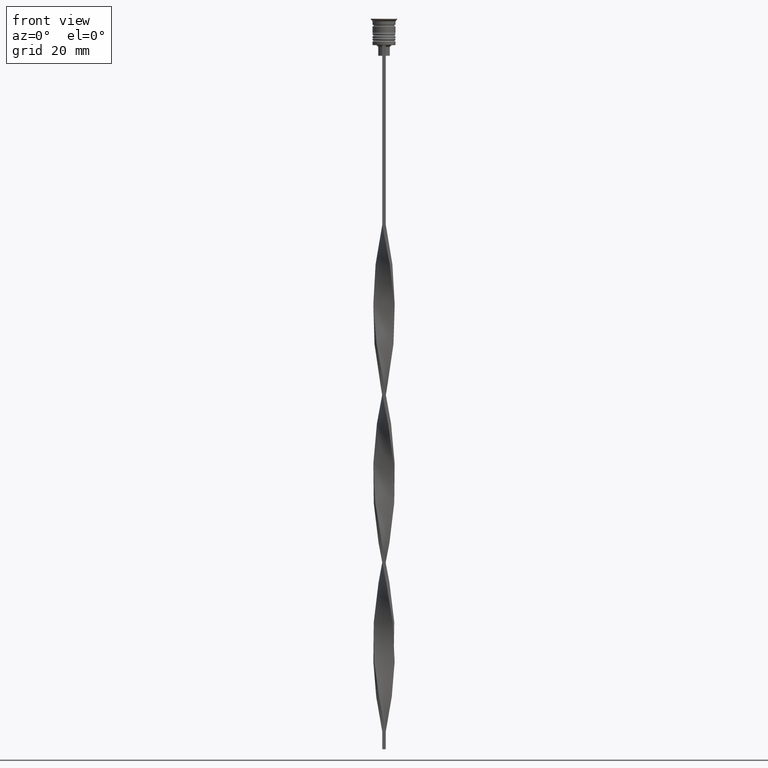
[diagram: clean part render]
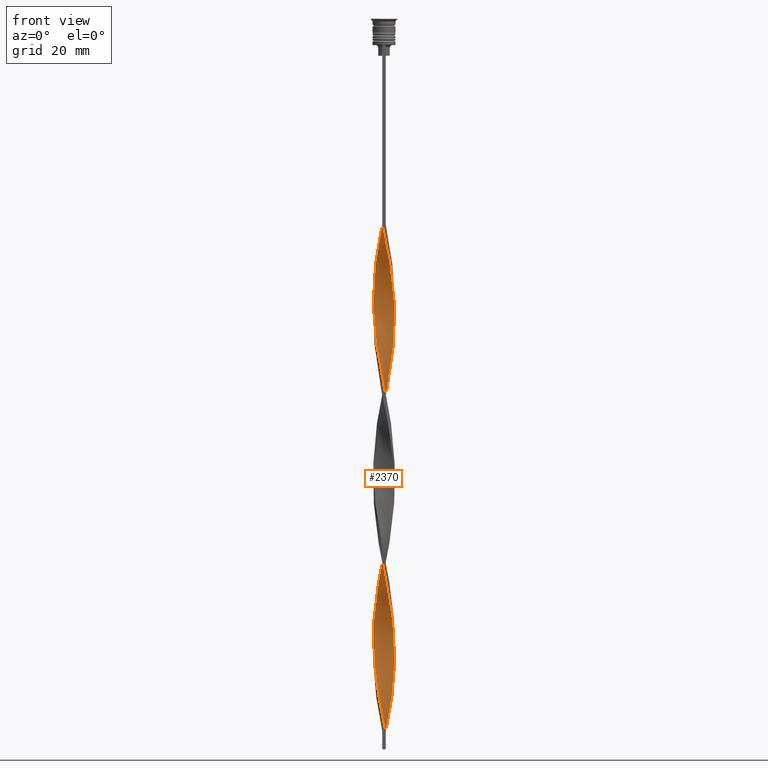
[diagram: same view with one face highlighted and labeled with its STEP entity id]
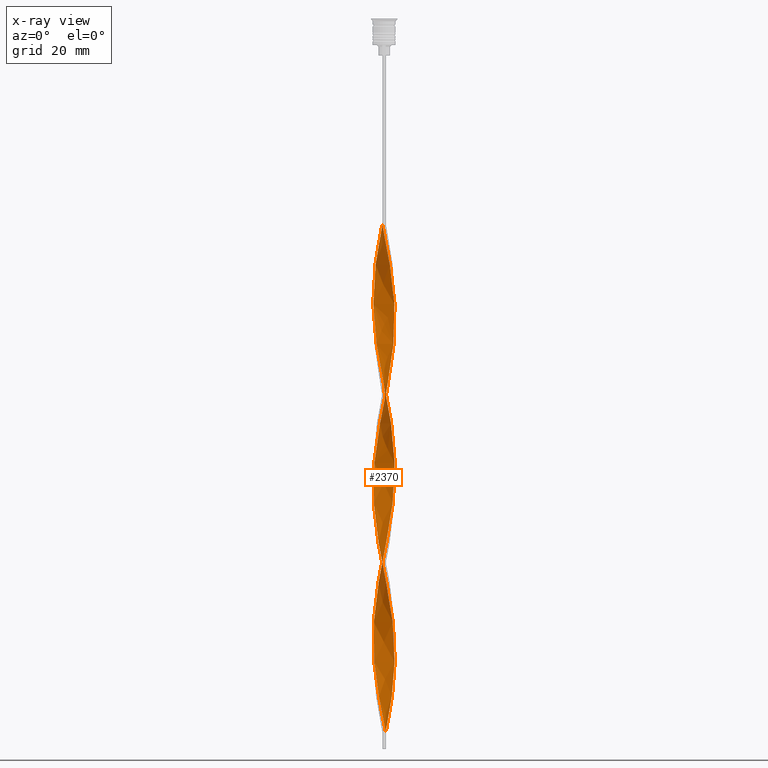
[diagram: x-ray of the same camera — body ghosted, the highlighted face saturated]
A machine part, front view. The second image highlights one B-rep face of the part: STEP entity #2370.
The next image is the same camera in x-ray: the body ghosted, the highlighted face saturated — about 0% of this face is hidden behind the body in this view.
In plain terms, the highlighted face is a freeform B-spline surface patch.
Its self-contained STEP definition (entity closure, byte-faithful):
#2 = CARTESIAN_POINT ( 'NONE',  ( 0.3415330684894307689, -3.035256292798965916, -158.7352941176470438 ) ) ;
#10 = CARTESIAN_POINT ( 'NONE',  ( -3.033336708616754862, -0.2210620097576112830, -81.08823529411763786 ) ) ;
#17 = CARTESIAN_POINT ( 'NONE',  ( -0.05976200360776012799, -3.040794057959990582, -199.6764705882352757 ) ) ;
#29 = CARTESIAN_POINT ( 'NONE',  ( 0.7779909387260891540, 2.953668176878986973, -201.0882352941176237 ) ) ;
#44 = CARTESIAN_POINT ( 'NONE',  ( -2.564815624776293657, 1.658658015008195097, -71.20588235294118817 ) ) ;
#55 = CARTESIAN_POINT ( 'NONE',  ( -1.888233802353294744, -2.400832919529793941, -189.7941176470588118 ) ) ;
#58 = CARTESIAN_POINT ( 'NONE',  ( 2.990795728622512417, 0.6201342673170633368, -184.1470588235293917 ) ) ;
#62 = CARTESIAN_POINT ( 'NONE',  ( -1.307479267857234895, 2.760420903407855509, -62.73529411764705799 ) ) ;
#77 = CARTESIAN_POINT ( 'NONE',  ( -2.628006467404950364, -1.556601299988307208, -184.1470588235293917 ) ) ;
#79 = CARTESIAN_POINT ( 'NONE',  ( -0.5000000000000001110, -3.000000000000000000, -58.50000000000000000 ) ) ;
#95 = CARTESIAN_POINT ( 'NONE',  ( -0.05976200360776012799, -3.040794057959990582, -103.6764705882352899 ) ) ;
#105 = CARTESIAN_POINT ( 'NONE',  ( -1.307479267857234673, 2.760420903407855509, -62.73529411764705799 ) ) ;
#115 = CARTESIAN_POINT ( 'NONE',  ( 2.990795728622511973, -0.6201342673170634479, -124.8529411764705799 ) ) ;
#128 = CARTESIAN_POINT ( 'NONE',  ( -2.390591389550001278, 1.880178929838698831, -69.79411764705881183 ) ) ;
#133 = CARTESIAN_POINT ( 'NONE',  ( -2.004405056496874504, 2.287435325750164505, -162.9705882352940876 ) ) ;
#137 = CARTESIAN_POINT ( 'NONE',  ( -0.2220090612739108182, -3.046331823121015248, -59.91176470588236214 ) ) ;
#155 = CARTESIAN_POINT ( 'NONE',  ( 0.8934446992291303902, 2.920818749814322324, -147.4411764705882320 ) ) ;
#157 = CARTESIAN_POINT ( 'NONE',  ( 2.908359051953456564, 0.8896334216520833671, -89.55882352941175384 ) ) ;
#182 = CARTESIAN_POINT ( 'NONE',  ( -1.888233802353294744, -2.400832919529793941, -93.79411764705882604 ) ) ;
#189 = CARTESIAN_POINT ( 'NONE',  ( 1.888233802353294744, -2.400832919529793941, -71.20588235294118817 ) ) ;
#198 = CARTESIAN_POINT ( 'NONE',  ( 0.8934446992291303902, 2.920818749814322324, -147.4411764705882320 ) ) ;
#209 = CARTESIAN_POINT ( 'NONE',  ( 2.004405056496874504, 2.287435325750164505, -98.02941176470588402 ) ) ;
#215 = CARTESIAN_POINT ( 'NONE',  ( 2.695369000030346740, -1.408895295497649913, -120.6176470588235219 ) ) ;
#218 =( BOUNDED_SURFACE ( )  B_SPLINE_SURFACE ( 1, 2, ( 
 ( #2979, #2088, #442, #1901, #2467, #1375, #3284, #3562, #2434, #189, #1358, #1620, #1342, #2508, #2741, #3619, #1078, #2163, #3543, #1022, #2485, #1101, #3597, #455, #2758, #3272, #528, #798, #209, #2211, #3324, #3579, #1056, #1639, #1941, #3047, #1678, #2193, #510, #737, #3034, #3303, #1038, #3065, #2233, #1882, #778, #3344, #818, #1661, #2996, #3012, #1324, #1961, #2793, #1602, #1304, #2723, #2451, #2177, #468, #1921, #757, #491, #226, #2775, #243, #2271, #1193, #265, #1156, #3417, #2813, #2867, #2054, #1417, #891, #3155, #3365, #626, #299, #3382, #611, #2578, #282, #3636, #2289, #1435, #2250, #1397, #2543, #570, #3399, #2560, #3138, #1977, #1758, #2526, #550, #912, #1135, #29, #874 ),
 ( #2036, #330, #859, #62, #1471, #2001, #1736, #2596, #3432, #44, #1119, #836, #1718, #2829, #2021, #1455, #10, #3082, #3120, #1699, #590, #2848, #2319, #1773, #3099, #315, #1177, #2306, #2667, #2084, #1283, #401, #95, #1228, #3482, #2353, #2939, #1262, #979, #2124, #926, #3232, #344, #3171, #3521, #3466, #381, #115, #2650, #2068, #1543, #419, #641, #3449, #1243, #716, #961, #1788, #1526, #2369, #2690, #3212, #3250, #155, #3503, #660, #2107, #2410, #2900, #943, #1808, #682, #3192, #1825, #133, #2393, #701, #1000, #2921, #1844, #2956, #361, #1508, #1565, #2142, #2630, #2884, #1486, #2610, #77, #1212, #2337, #2975, #1914, #1935, #3028, #1016, #3301, #439, #1098, #1355, #2174, #484 ) ),
 .UNSPECIFIED., .F., .F., .F. ) 
 B_SPLINE_SURFACE_WITH_KNOTS ( ( 2, 2 ),
 ( 3, 2, 2, 2, 2, 2, 2, 2, 2, 2, 2, 2, 2, 2, 2, 2, 2, 2, 2, 2, 2, 2, 2, 2, 2, 2, 2, 2, 2, 2, 2, 2, 2, 2, 2, 2, 2, 2, 2, 2, 2, 2, 2, 2, 2, 2, 2, 2, 2, 2, 2, 3 ),
 ( 0.000000000000000000, 1.000000000000000000 ),
 ( 0.000000000000000000, 0.01470588235294117627, 0.02941176470588235253, 0.04411764705882353227, 0.05882352941176470507, 0.07352941176470588480, 0.08823529411764706454, 0.1029411764705882304, 0.1176470588235294101, 0.1323529411764705899, 0.1470588235294117696, 0.1617647058823529493, 0.1764705882352941291, 0.1911764705882352811, 0.2058823529411764608, 0.2205882352941176405, 0.2352941176470588203, 0.2500000000000000000, 0.2647058823529411797, 0.2794117647058823595, 0.2941176470588235392, 0.3088235294117647189, 0.3235294117647058987, 0.3382352941176470784, 0.3529411764705882582, 0.3676470588235294379, 0.3823529411764705621, 0.3970588235294117418, 0.4117647058823529216, 0.4264705882352941013, 0.4411764705882352811, 0.4558823529411764608, 0.4705882352941176405, 0.4852941176470588203, 0.5000000000000000000, 0.5147058823529411242, 0.5294117647058823595, 0.5441176470588234837, 0.5588235294117647189, 0.5735294117647058432, 0.5882352941176470784, 0.6029411764705882026, 0.6176470588235294379, 0.6323529411764705621, 0.6470588235294117974, 0.6617647058823529216, 0.6764705882352941568, 0.6911764705882352811, 0.7058823529411765163, 0.7205882352941176405, 0.7352941176470588758, 0.7500000000000000000 ),
 .UNSPECIFIED. ) 
 GEOMETRIC_REPRESENTATION_ITEM ( )  RATIONAL_B_SPLINE_SURFACE ( (
 ( 1.000000000000000000, 0.9957341762950344677, 1.000000000000000000, 0.9957341762950344677, 1.000000000000000000, 0.9957341762950344677, 1.000000000000000000, 0.9957341762950344677, 1.000000000000000000, 0.9957341762950344677, 1.000000000000000000, 0.9957341762950344677, 1.000000000000000000, 0.9957341762950344677, 1.000000000000000000, 0.9957341762950344677, 1.000000000000000000, 0.9957341762950344677, 1.000000000000000000, 0.9957341762950344677, 1.000000000000000000, 0.9957341762950344677, 1.000000000000000000, 0.9957341762950344677, 1.000000000000000000, 0.9957341762950344677, 1.000000000000000000, 0.9957341762950344677, 1.000000000000000000, 0.9957341762950344677, 1.000000000000000000, 0.9957341762950344677, 1.000000000000000000, 0.9957341762950344677, 1.000000000000000000, 0.9957341762950344677, 1.000000000000000000, 0.9957341762950344677, 1.000000000000000000, 0.9957341762950344677, 1.000000000000000000, 0.9957341762950344677, 1.000000000000000000, 0.9957341762950344677, 1.000000000000000000, 0.9957341762950344677, 1.000000000000000000, 0.9957341762950344677, 1.000000000000000000, 0.9957341762950344677, 1.000000000000000000, 0.9957341762950344677, 1.000000000000000000, 0.9957341762950344677, 1.000000000000000000, 0.9957341762950344677, 1.000000000000000000, 0.9957341762950344677, 1.000000000000000000, 0.9957341762950344677, 1.000000000000000000, 0.9957341762950344677, 1.000000000000000000, 0.9957341762950344677, 1.000000000000000000, 0.9957341762950344677, 1.000000000000000000, 0.9957341762950344677, 1.000000000000000000, 0.9957341762950344677, 1.000000000000000000, 0.9957341762950344677, 1.000000000000000000, 0.9957341762950344677, 1.000000000000000000, 0.9957341762950344677, 1.000000000000000000, 0.9957341762950344677, 1.000000000000000000, 0.9957341762950344677, 1.000000000000000000, 0.9957341762950344677, 1.000000000000000000, 0.9957341762950344677, 1.000000000000000000, 0.9957341762950344677, 1.000000000000000000, 0.9957341762950344677, 1.000000000000000000, 0.9957341762950344677, 1.000000000000000000, 0.9957341762950344677, 1.000000000000000000, 0.9957341762950344677, 1.000000000000000000, 0.9957341762950344677, 1.000000000000000000, 0.9957341762950344677, 1.000000000000000000, 0.9957341762950344677, 1.000000000000000000, 0.9957341762950344677, 1.000000000000000000),
 ( 1.000000000000000000, 0.9957341762950344677, 1.000000000000000000, 0.9957341762950344677, 1.000000000000000000, 0.9957341762950344677, 1.000000000000000000, 0.9957341762950344677, 1.000000000000000000, 0.9957341762950344677, 1.000000000000000000, 0.9957341762950344677, 1.000000000000000000, 0.9957341762950344677, 1.000000000000000000, 0.9957341762950344677, 1.000000000000000000, 0.9957341762950344677, 1.000000000000000000, 0.9957341762950344677, 1.000000000000000000, 0.9957341762950344677, 1.000000000000000000, 0.9957341762950344677, 1.000000000000000000, 0.9957341762950344677, 1.000000000000000000, 0.9957341762950344677, 1.000000000000000000, 0.9957341762950344677, 1.000000000000000000, 0.9957341762950344677, 1.000000000000000000, 0.9957341762950344677, 1.000000000000000000, 0.9957341762950344677, 1.000000000000000000, 0.9957341762950344677, 1.000000000000000000, 0.9957341762950344677, 1.000000000000000000, 0.9957341762950344677, 1.000000000000000000, 0.9957341762950344677, 1.000000000000000000, 0.9957341762950344677, 1.000000000000000000, 0.9957341762950344677, 1.000000000000000000, 0.9957341762950344677, 1.000000000000000000, 0.9957341762950344677, 1.000000000000000000, 0.9957341762950344677, 1.000000000000000000, 0.9957341762950344677, 1.000000000000000000, 0.9957341762950344677, 1.000000000000000000, 0.9957341762950344677, 1.000000000000000000, 0.9957341762950344677, 1.000000000000000000, 0.9957341762950344677, 1.000000000000000000, 0.9957341762950344677, 1.000000000000000000, 0.9957341762950344677, 1.000000000000000000, 0.9957341762950344677, 1.000000000000000000, 0.9957341762950344677, 1.000000000000000000, 0.9957341762950344677, 1.000000000000000000, 0.9957341762950344677, 1.000000000000000000, 0.9957341762950344677, 1.000000000000000000, 0.9957341762950344677, 1.000000000000000000, 0.9957341762950344677, 1.000000000000000000, 0.9957341762950344677, 1.000000000000000000, 0.9957341762950344677, 1.000000000000000000, 0.9957341762950344677, 1.000000000000000000, 0.9957341762950344677, 1.000000000000000000, 0.9957341762950344677, 1.000000000000000000, 0.9957341762950344677, 1.000000000000000000, 0.9957341762950344677, 1.000000000000000000, 0.9957341762950344677, 1.000000000000000000, 0.9957341762950344677, 1.000000000000000000, 0.9957341762950344677, 1.000000000000000000) ) ) 
 REPRESENTATION_ITEM ( '' )  SURFACE ( )  );
#221 = CARTESIAN_POINT ( 'NONE',  ( 2.092734363651089780, -2.206912522777889407, -168.6176470588235077 ) ) ;
#226 = CARTESIAN_POINT ( 'NONE',  ( -1.549961113263637058, -2.616795855119490533, -148.8529411764705799 ) ) ;
#235 = CARTESIAN_POINT ( 'NONE',  ( -1.792442958670039221, 2.473170806831127333, -161.5588235294117680 ) ) ;
#238 = CARTESIAN_POINT ( 'NONE',  ( -1.792442958670038777, -2.473170806831127333, -147.4411764705882320 ) ) ;
#243 = CARTESIAN_POINT ( 'NONE',  ( -1.042735103291661192, -2.857044540143419908, -151.6764705882353041 ) ) ;
#254 = CARTESIAN_POINT ( 'NONE',  ( 2.462620696176917257, 1.784796713007146707, -137.5588235294117680 ) ) ;
#259 = CARTESIAN_POINT ( 'NONE',  ( 0.7779909387260891540, 2.953668176878986529, -105.0882352941176521 ) ) ;
#265 = CARTESIAN_POINT ( 'NONE',  ( -0.2220090612739108182, -3.046331823121014803, -155.9117647058824048 ) ) ;
#274 = CARTESIAN_POINT ( 'NONE',  ( -2.462620696176917701, -1.784796713007145819, -185.5588235294117396 ) ) ;
#277 = CARTESIAN_POINT ( 'NONE',  ( -2.462620696176918589, 1.784796713007145375, -123.4411764705882177 ) ) ;
#282 = CARTESIAN_POINT ( 'NONE',  ( 2.941068349153452388, -0.7746721665374233234, -177.0882352941176237 ) ) ;
#299 = CARTESIAN_POINT ( 'NONE',  ( 2.462620696176917701, -1.784796713007146041, -171.4411764705882035 ) ) ;
#315 = CARTESIAN_POINT ( 'NONE',  ( -1.888233802353294744, -2.400832919529793941, -93.79411764705881183 ) ) ;
#330 = CARTESIAN_POINT ( 'NONE',  ( -0.7779909387260893761, 2.953668176878985641, -59.91176470588236214 ) ) ;
#344 = CARTESIAN_POINT ( 'NONE',  ( 2.390591389550001278, -1.880178929838698831, -117.7941176470588118 ) ) ;
#361 = CARTESIAN_POINT ( 'NONE',  ( -2.990795728622511973, 0.6201342673170636699, -172.8529411764705799 ) ) ;
#376 = ORIENTED_EDGE ( 'NONE', *, *, #819, .T. ) ;
#381 = CARTESIAN_POINT ( 'NONE',  ( 2.908359051953456564, -0.8896334216520829230, -123.4411764705882177 ) ) ;
#383 = CARTESIAN_POINT ( 'NONE',  ( 3.053821120486486240, 0.06001802994261470209, -85.32352941176469585 ) ) ;
#401 = CARTESIAN_POINT ( 'NONE',  ( -0.3415330684894314350, -3.035256292798966360, -102.2647058823529420 ) ) ;
#403 = CARTESIAN_POINT ( 'NONE',  ( 2.092734363651089780, -2.206912522777889407, -72.61764705882352189 ) ) ;
#410 = VERTEX_POINT ( 'NONE', #1138 ) ;
#419 = CARTESIAN_POINT ( 'NONE',  ( 3.012852296747023484, 0.5021420494578368032, -130.5000000000000000 ) ) ;
#434 = CARTESIAN_POINT ( 'NONE',  ( -2.216367154323710231, 2.101699844669202566, -68.38235294117646390 ) ) ;
#439 = CARTESIAN_POINT ( 'NONE',  ( -0.6174888838592809126, -2.978037521306644120, -196.8529411764705515 ) ) ;
#442 = CARTESIAN_POINT ( 'NONE',  ( 0.05976200360776001697, -3.040794057959990582, -61.32352941176470296 ) ) ;
#449 = CARTESIAN_POINT ( 'NONE',  ( -2.297234924948885926, -2.012992126025985762, -90.97058823529411598 ) ) ;
#455 = CARTESIAN_POINT ( 'NONE',  ( 2.825922375284401156, 1.159132575987104286, -90.97058823529413019 ) ) ;
#462 = CARTESIAN_POINT ( 'NONE',  ( 1.414931142305390521, 2.706916227440719691, -144.6176470588235361 ) ) ;
#468 = CARTESIAN_POINT ( 'NONE',  ( -2.390591389550000834, -1.880178929838698831, -143.2058823529411882 ) ) ;
#476 = CARTESIAN_POINT ( 'NONE',  ( -3.053821120486486240, 0.06001802994261448004, -175.6764705882353041 ) ) ;
#482 = CARTESIAN_POINT ( 'NONE',  ( 1.414931142305390077, -2.706916227440719691, -164.3823529411764923 ) ) ;
#484 = CARTESIAN_POINT ( 'NONE',  ( 0.4999999999999997780, -3.000000000000000000, -202.4999999999999716 ) ) ;
#491 = CARTESIAN_POINT ( 'NONE',  ( -1.792442958670038555, -2.473170806831126889, -147.4411764705882320 ) ) ;
#498 = CARTESIAN_POINT ( 'NONE',  ( -2.390591389550001278, 1.880178929838698831, -165.7941176470588118 ) ) ;
#503 = CARTESIAN_POINT ( 'NONE',  ( 0.2220090612739105962, 3.046331823121015248, -107.9117647058823621 ) ) ;
#510 = CARTESIAN_POINT ( 'NONE',  ( -0.6174888838592813567, 2.978037521306644120, -112.1470588235294059 ) ) ;
#520 = CARTESIAN_POINT ( 'NONE',  ( 1.888233802353293633, 2.400832919529794385, -141.7941176470587834 ) ) ;
#523 = CARTESIAN_POINT ( 'NONE',  ( -1.888233802353294744, 2.400832919529793497, -119.2058823529411598 ) ) ;
#528 = CARTESIAN_POINT ( 'NONE',  ( 2.390591389550001722, 1.880178929838698387, -95.20588235294117396 ) ) ;
#539 = CARTESIAN_POINT ( 'NONE',  ( 1.549961113263637280, -2.616795855119490533, -112.1470588235294059 ) ) ;
#543 = CARTESIAN_POINT ( 'NONE',  ( -3.033336708616754418, 0.2210620097576128096, -131.9117647058823479 ) ) ;
#550 = CARTESIAN_POINT ( 'NONE',  ( 1.549961113263636836, 2.616795855119490533, -196.8529411764705515 ) ) ;
#566 = CARTESIAN_POINT ( 'NONE',  ( 0.5000000000000004441, 3.000000000000000000, -202.4999999999999716 ) ) ;
#570 = CARTESIAN_POINT ( 'NONE',  ( 2.825922375284401156, 1.159132575987104286, -186.9705882352941444 ) ) ;
#585 = CARTESIAN_POINT ( 'NONE',  ( 2.004405056496874504, 2.287435325750164505, -194.0294117647058556 ) ) ;
#590 = CARTESIAN_POINT ( 'NONE',  ( -2.748645434482415606, -1.301901791802658526, -86.73529411764704378 ) ) ;
#611 = CARTESIAN_POINT ( 'NONE',  ( 2.748645434482416050, -1.301901791802658082, -174.2647058823529278 ) ) ;
#619 = CARTESIAN_POINT ( 'NONE',  ( -0.3415330684894313795, -3.035256292798966360, -198.2647058823529562 ) ) ;
#626 = CARTESIAN_POINT ( 'NONE',  ( 2.297234924948886370, -2.012992126025985318, -170.0294117647058556 ) ) ;
#627 = EDGE_CURVE ( 'NONE', #892, #410, #1190, .T. ) ;
#637 = CARTESIAN_POINT ( 'NONE',  ( 1.549961113263636836, 2.616795855119490533, -196.8529411764705515 ) ) ;
#641 = CARTESIAN_POINT ( 'NONE',  ( 2.941068349153452832, 0.7746721665374219912, -131.9117647058823479 ) ) ;
#654 = CARTESIAN_POINT ( 'NONE',  ( -3.033336708616754862, -0.2210620097576112830, -81.08823529411763786 ) ) ;
#660 = CARTESIAN_POINT ( 'NONE',  ( 0.3415330684894318236, 3.035256292798965916, -150.2647058823529278 ) ) ;
#670 = ORIENTED_EDGE ( 'NONE', *, *, #2621, .F. ) ;
#682 = CARTESIAN_POINT ( 'NONE',  ( -1.307479267857234895, 2.760420903407855509, -158.7352941176470154 ) ) ;
#694 = CARTESIAN_POINT ( 'NONE',  ( -1.792442958670039221, 2.473170806831127333, -65.55882352941178226 ) ) ;
#701 = CARTESIAN_POINT ( 'NONE',  ( -2.390591389550001278, 1.880178929838698831, -165.7941176470588118 ) ) ;
#703 = CARTESIAN_POINT ( 'NONE',  ( 0.05976200360776001697, -3.040794057959990582, -61.32352941176470296 ) ) ;
#711 = DIRECTION ( 'NONE',  ( 0.000000000000000000, 1.000000000000000000, 0.000000000000000000 ) ) ;
#716 = CARTESIAN_POINT ( 'NONE',  ( 2.628006467404950808, 1.556601299988306542, -136.1470588235294201 ) ) ;
#737 = CARTESIAN_POINT ( 'NONE',  ( -0.8934446992291307232, 2.920818749814322324, -113.5588235294117538 ) ) ;
#745 = CARTESIAN_POINT ( 'NONE',  ( 2.990795728622512417, -0.6201342673170634479, -124.8529411764705799 ) ) ;
#757 = CARTESIAN_POINT ( 'NONE',  ( -2.004405056496875837, -2.287435325750163617, -146.0294117647058556 ) ) ;
#765 = CARTESIAN_POINT ( 'NONE',  ( -2.004405056496874504, 2.287435325750164505, -162.9705882352940876 ) ) ;
#770 = CARTESIAN_POINT ( 'NONE',  ( 2.216367154323710231, 2.101699844669202566, -96.61764705882355031 ) ) ;
#774 = VERTEX_POINT ( 'NONE', #3131 ) ;
#778 = CARTESIAN_POINT ( 'NONE',  ( -2.462620696176918589, 1.784796713007145375, -123.4411764705882177 ) ) ;
#788 = CARTESIAN_POINT ( 'NONE',  ( 0.4999999999999997780, -3.000000000000000000, -106.4999999999999858 ) ) ;
#793 = CARTESIAN_POINT ( 'NONE',  ( -2.092734363651089780, 2.206912522777889851, -120.6176470588235219 ) ) ;
#798 = CARTESIAN_POINT ( 'NONE',  ( 2.216367154323710675, 2.101699844669202566, -96.61764705882353610 ) ) ;
#807 = CARTESIAN_POINT ( 'NONE',  ( 3.012852296747023484, 0.5021420494578368032, -130.5000000000000000 ) ) ;
#812 = CARTESIAN_POINT ( 'NONE',  ( 2.869284401559882625, -1.047202283617009400, -175.6764705882353041 ) ) ;
#818 = CARTESIAN_POINT ( 'NONE',  ( -2.748645434482415606, 1.301901791802659192, -126.2647058823529420 ) ) ;
#819 = EDGE_CURVE ( 'NONE', #892, #774, #3207, .T. ) ;
#827 = CARTESIAN_POINT ( 'NONE',  ( -1.307479267857234673, 2.760420903407855509, -158.7352941176470438 ) ) ;
#829 = CARTESIAN_POINT ( 'NONE',  ( -0.2220090612739108182, -3.046331823121015248, -155.9117647058823763 ) ) ;
#836 = CARTESIAN_POINT ( 'NONE',  ( -2.825922375284401156, 1.159132575987104063, -74.02941176470586981 ) ) ;
#852 = CARTESIAN_POINT ( 'NONE',  ( 1.549961113263636836, 2.616795855119490533, -100.8529411764705941 ) ) ;
#859 = CARTESIAN_POINT ( 'NONE',  ( -1.042735103291662080, 2.857044540143419908, -61.32352941176470296 ) ) ;
#870 = CARTESIAN_POINT ( 'NONE',  ( 2.564815624776293657, 1.658658015008195097, -189.7941176470588118 ) ) ;
#874 = CARTESIAN_POINT ( 'NONE',  ( 0.5000000000000004441, 3.000000000000000000, -202.4999999999999716 ) ) ;
#891 = CARTESIAN_POINT ( 'NONE',  ( 1.651582472329342188, -2.553874573485256150, -165.7941176470588118 ) ) ;
#892 = VERTEX_POINT ( 'NONE', #1819 ) ;
#902 = EDGE_CURVE ( 'NONE', #774, #2354, #3180, .T. ) ;
#912 = CARTESIAN_POINT ( 'NONE',  ( 1.307479267857235561, 2.760420903407855064, -198.2647058823529562 ) ) ;
#926 = CARTESIAN_POINT ( 'NONE',  ( 2.004405056496874948, -2.287435325750164061, -114.9705882352941018 ) ) ;
#928 = CARTESIAN_POINT ( 'NONE',  ( 1.888233802353294744, -2.400832919529793941, -71.20588235294118817 ) ) ;
#939 = CARTESIAN_POINT ( 'NONE',  ( 2.390591389550001722, 1.880178929838698387, -191.2058823529411598 ) ) ;
#943 = CARTESIAN_POINT ( 'NONE',  ( -0.7779909387260893761, 2.953668176878985641, -155.9117647058824048 ) ) ;
#948 = FACE_OUTER_BOUND ( 'NONE', #3360, .T. ) ;
#961 = CARTESIAN_POINT ( 'NONE',  ( 2.462620696176917257, 1.784796713007146707, -137.5588235294117680 ) ) ;
#974 = CARTESIAN_POINT ( 'NONE',  ( -0.5000000000000001110, -3.000000000000000000, -58.50000000000000000 ) ) ;
#979 = CARTESIAN_POINT ( 'NONE',  ( 1.549961113263637280, -2.616795855119490533, -112.1470588235294059 ) ) ;
#981 = CARTESIAN_POINT ( 'NONE',  ( 2.297234924948885926, -2.012992126025985318, -74.02941176470586981 ) ) ;
#992 = CARTESIAN_POINT ( 'NONE',  ( -2.941068349153452832, -0.7746721665374231014, -83.91176470588234793 ) ) ;
#1000 = CARTESIAN_POINT ( 'NONE',  ( -2.564815624776293657, 1.658658015008195097, -167.2058823529411882 ) ) ;
#1009 = CARTESIAN_POINT ( 'NONE',  ( -2.628006467404950364, -1.556601299988307208, -88.14705882352940591 ) ) ;
#1016 = CARTESIAN_POINT ( 'NONE',  ( -1.154187920767260067, -2.813867488627520785, -194.0294117647058556 ) ) ;
#1022 = CARTESIAN_POINT ( 'NONE',  ( 3.053821120486486240, 0.06001802994261470209, -85.32352941176469585 ) ) ;
#1038 = CARTESIAN_POINT ( 'NONE',  ( -1.651582472329342188, 2.553874573485256150, -117.7941176470588118 ) ) ;
#1046 = CARTESIAN_POINT ( 'NONE',  ( -1.042735103291662080, 2.857044540143419908, -157.3235294117646959 ) ) ;
#1049 = CARTESIAN_POINT ( 'NONE',  ( -3.022308424554498441, -0.3400761486298386482, -134.7352941176470722 ) ) ;
#1056 = CARTESIAN_POINT ( 'NONE',  ( 1.042735103291662080, 2.857044540143419908, -103.6764705882352899 ) ) ;
#1068 = CARTESIAN_POINT ( 'NONE',  ( 1.651582472329341522, 2.553874573485256150, -143.2058823529411882 ) ) ;
#1069 = CARTESIAN_POINT ( 'NONE',  ( 2.748645434482416050, -1.301901791802658082, -174.2647058823529278 ) ) ;
#1078 = CARTESIAN_POINT ( 'NONE',  ( 2.941068349153452388, -0.7746721665374233234, -81.08823529411763786 ) ) ;
#1091 = CARTESIAN_POINT ( 'NONE',  ( -0.5000000000000001110, 3.000000000000000000, -154.4999999999999716 ) ) ;
#1096 = CARTESIAN_POINT ( 'NONE',  ( 0.8934446992291309453, -2.920818749814322324, -161.5588235294117680 ) ) ;
#1098 = CARTESIAN_POINT ( 'NONE',  ( -0.3415330684894314350, -3.035256292798966360, -198.2647058823529562 ) ) ;
#1101 = CARTESIAN_POINT ( 'NONE',  ( 2.990795728622511973, 0.6201342673170632258, -88.14705882352940591 ) ) ;
#1109 = CARTESIAN_POINT ( 'NONE',  ( -2.564815624776293657, 1.658658015008195097, -167.2058823529411882 ) ) ;
#1113 = CARTESIAN_POINT ( 'NONE',  ( 1.307479267857235339, 2.760420903407855064, -102.2647058823529420 ) ) ;
#1119 = CARTESIAN_POINT ( 'NONE',  ( -2.695369000030346740, 1.408895295497649469, -72.61764705882352189 ) ) ;
#1125 = CARTESIAN_POINT ( 'NONE',  ( -0.8934446992291313894, -2.920818749814322324, -195.4411764705882604 ) ) ;
#1129 = CARTESIAN_POINT ( 'NONE',  ( 2.941068349153452388, -0.7746721665374233234, -177.0882352941176237 ) ) ;
#1135 = CARTESIAN_POINT ( 'NONE',  ( 1.042735103291662080, 2.857044540143419908, -199.6764705882352757 ) ) ;
#1138 = CARTESIAN_POINT ( 'NONE',  ( 0.5000000000000004441, 3.000000000000000000, -202.4999999999999716 ) ) ;
#1145 = CARTESIAN_POINT ( 'NONE',  ( -2.092734363651090668, -2.206912522777888963, -188.3823529411764355 ) ) ;
#1156 = CARTESIAN_POINT ( 'NONE',  ( 0.05976200360776001697, -3.040794057959990582, -157.3235294117646959 ) ) ;
#1177 = CARTESIAN_POINT ( 'NONE',  ( -1.651582472329342632, -2.553874573485255706, -95.20588235294117396 ) ) ;
#1187 = CARTESIAN_POINT ( 'NONE',  ( -1.651582472329342632, -2.553874573485255706, -191.2058823529411598 ) ) ;
#1189 = CARTESIAN_POINT ( 'NONE',  ( 2.216367154323710231, 2.101699844669202566, -192.6176470588235077 ) ) ;
#1190 =( BOUNDED_CURVE ( )  B_SPLINE_CURVE ( 2, ( #79, #137, #703, #1214, #1828, #1846, #3157, #2959, #1230, #928, #403, #981, #2339, #2071, #2923, #2355, #3174, #2598, #1509, #383, #2126, #2461, #157, #2691, #1673, #1694, #2787, #770, #3058, #1285, #852, #1113, #1933, #259, #3631, #503, #1653, #1953, #1392, #3357, #1995, #2243, #2538, #523, #793, #3572, #277, #3042, #3338, #3093, #2807, #3317, #543, #2500, #1049, #2203, #3612, #2227, #1569, #2264, #2771, #1632, #3297, #238, #1368, #2189, #3375, #2752, #2520, #829, #3592, #2, #1911, #1096, #1971, #482, #1411, #3026, #221, #3076, #1353, #2481, #1069, #812, #1129, #1449, #2316, #2624, #2064, #58, #2032, #2606, #3150, #870, #939, #1189, #585, #2896, #637, #3427, #3460, #1221, #2573 ),
 .UNSPECIFIED., .F., .T. ) 
 B_SPLINE_CURVE_WITH_KNOTS ( ( 3, 2, 2, 2, 2, 2, 2, 2, 2, 2, 2, 2, 2, 2, 2, 2, 2, 2, 2, 2, 2, 2, 2, 2, 2, 2, 2, 2, 2, 2, 2, 2, 2, 2, 2, 2, 2, 2, 2, 2, 2, 2, 2, 2, 2, 2, 2, 2, 2, 2, 2, 3 ),
 ( 0.000000000000000000, 0.01470588235294117453, 0.02941176470588234906, 0.04411764705882353227, 0.05882352941176469813, 0.07352941176470588480, 0.08823529411764706454, 0.1029411764705882443, 0.1176470588235293963, 0.1323529411764705899, 0.1470588235294117696, 0.1617647058823529493, 0.1764705882352941291, 0.1911764705882352811, 0.2058823529411764885, 0.2205882352941176405, 0.2352941176470587925, 0.2500000000000000000, 0.2647058823529411797, 0.2794117647058823595, 0.2941176470588235392, 0.3088235294117647189, 0.3235294117647058987, 0.3382352941176470229, 0.3529411764705882582, 0.3676470588235294379, 0.3823529411764705621, 0.3970588235294117418, 0.4117647058823529771, 0.4264705882352941013, 0.4411764705882352811, 0.4558823529411764608, 0.4705882352941175850, 0.4852941176470588203, 0.5000000000000000000, 0.5147058823529411242, 0.5294117647058823595, 0.5441176470588234837, 0.5588235294117647189, 0.5735294117647058432, 0.5882352941176470784, 0.6029411764705882026, 0.6176470588235294379, 0.6323529411764705621, 0.6470588235294117974, 0.6617647058823529216, 0.6764705882352940458, 0.6911764705882351700, 0.7058823529411765163, 0.7205882352941176405, 0.7352941176470588758, 0.7500000000000000000 ),
 .UNSPECIFIED. ) 
 CURVE ( )  GEOMETRIC_REPRESENTATION_ITEM ( )  RATIONAL_B_SPLINE_CURVE ( ( 1.000000000000000000, 0.9957341762950344677, 1.000000000000000000, 0.9957341762950344677, 1.000000000000000000, 0.9957341762950344677, 1.000000000000000000, 0.9957341762950344677, 1.000000000000000000, 0.9957341762950344677, 1.000000000000000000, 0.9957341762950344677, 1.000000000000000000, 0.9957341762950344677, 1.000000000000000000, 0.9957341762950344677, 1.000000000000000000, 0.9957341762950344677, 1.000000000000000000, 0.9957341762950344677, 1.000000000000000000, 0.9957341762950344677, 1.000000000000000000, 0.9957341762950344677, 1.000000000000000000, 0.9957341762950344677, 1.000000000000000000, 0.9957341762950344677, 1.000000000000000000, 0.9957341762950344677, 1.000000000000000000, 0.9957341762950344677, 1.000000000000000000, 0.9957341762950344677, 1.000000000000000000, 0.9957341762950344677, 1.000000000000000000, 0.9957341762950344677, 1.000000000000000000, 0.9957341762950344677, 1.000000000000000000, 0.9957341762950344677, 1.000000000000000000, 0.9957341762950344677, 1.000000000000000000, 0.9957341762950344677, 1.000000000000000000, 0.9957341762950344677, 1.000000000000000000, 0.9957341762950344677, 1.000000000000000000, 0.9957341762950344677, 1.000000000000000000, 0.9957341762950344677, 1.000000000000000000, 0.9957341762950344677, 1.000000000000000000, 0.9957341762950344677, 1.000000000000000000, 0.9957341762950344677, 1.000000000000000000, 0.9957341762950344677, 1.000000000000000000, 0.9957341762950344677, 1.000000000000000000, 0.9957341762950344677, 1.000000000000000000, 0.9957341762950344677, 1.000000000000000000, 0.9957341762950344677, 1.000000000000000000, 0.9957341762950344677, 1.000000000000000000, 0.9957341762950344677, 1.000000000000000000, 0.9957341762950344677, 1.000000000000000000, 0.9957341762950344677, 1.000000000000000000, 0.9957341762950344677, 1.000000000000000000, 0.9957341762950344677, 1.000000000000000000, 0.9957341762950344677, 1.000000000000000000, 0.9957341762950344677, 1.000000000000000000, 0.9957341762950344677, 1.000000000000000000, 0.9957341762950344677, 1.000000000000000000, 0.9957341762950344677, 1.000000000000000000, 0.9957341762950344677, 1.000000000000000000, 0.9957341762950344677, 1.000000000000000000, 0.9957341762950344677, 1.000000000000000000, 0.9957341762950344677, 1.000000000000000000, 0.9957341762950344677, 1.000000000000000000 ) ) 
 REPRESENTATION_ITEM ( '' )  );
#1193 = CARTESIAN_POINT ( 'NONE',  ( -0.5000000000000001110, -3.000000000000000000, -154.4999999999999716 ) ) ;
#1212 = CARTESIAN_POINT ( 'NONE',  ( -2.462620696176917701, -1.784796713007145819, -185.5588235294117396 ) ) ;
#1214 = CARTESIAN_POINT ( 'NONE',  ( 0.3415330684894307689, -3.035256292798965916, -62.73529411764705799 ) ) ;
#1221 = CARTESIAN_POINT ( 'NONE',  ( 0.7779909387260891540, 2.953668176878986529, -201.0882352941176237 ) ) ;
#1228 = CARTESIAN_POINT ( 'NONE',  ( 0.2220090612739113178, -3.046331823121015248, -105.0882352941176521 ) ) ;
#1230 = CARTESIAN_POINT ( 'NONE',  ( 1.651582472329342188, -2.553874573485256150, -69.79411764705881183 ) ) ;
#1243 = CARTESIAN_POINT ( 'NONE',  ( 2.748645434482416050, 1.301901791802658082, -134.7352941176470722 ) ) ;
#1256 = CARTESIAN_POINT ( 'NONE',  ( -2.825922375284401156, 1.159132575987103841, -74.02941176470586981 ) ) ;
#1262 = CARTESIAN_POINT ( 'NONE',  ( 1.307479267857234895, -2.760420903407855509, -110.7352941176470438 ) ) ;
#1283 = CARTESIAN_POINT ( 'NONE',  ( -0.6174888838592809126, -2.978037521306644120, -100.8529411764705941 ) ) ;
#1285 = CARTESIAN_POINT ( 'NONE',  ( 1.792442958670039665, 2.473170806831126445, -99.44117647058823195 ) ) ;
#1295 = CARTESIAN_POINT ( 'NONE',  ( -3.022308424554498441, 0.3400761486298386482, -78.26470588235292780 ) ) ;
#1304 = CARTESIAN_POINT ( 'NONE',  ( -2.908359051953456120, -0.8896334216520842553, -137.5588235294117680 ) ) ;
#1310 = CARTESIAN_POINT ( 'NONE',  ( -1.651582472329342632, -2.553874573485255706, -95.20588235294117396 ) ) ;
#1324 = CARTESIAN_POINT ( 'NONE',  ( -3.033336708616754418, 0.2210620097576128096, -131.9117647058823479 ) ) ;
#1333 = CARTESIAN_POINT ( 'NONE',  ( 2.941068349153452832, 0.7746721665374219912, -131.9117647058823479 ) ) ;
#1342 = CARTESIAN_POINT ( 'NONE',  ( 2.462620696176917701, -1.784796713007146041, -75.44117647058823195 ) ) ;
#1348 = CARTESIAN_POINT ( 'NONE',  ( 1.307479267857234673, -2.760420903407855509, -110.7352941176470438 ) ) ;
#1353 = CARTESIAN_POINT ( 'NONE',  ( 2.462620696176917701, -1.784796713007146041, -171.4411764705882035 ) ) ;
#1355 = CARTESIAN_POINT ( 'NONE',  ( -0.05976200360776012799, -3.040794057959990582, -199.6764705882352757 ) ) ;
#1358 = CARTESIAN_POINT ( 'NONE',  ( 2.092734363651089780, -2.206912522777889407, -72.61764705882352189 ) ) ;
#1365 = CARTESIAN_POINT ( 'NONE',  ( -2.869284401559882625, -1.047202283617009844, -181.3235294117646959 ) ) ;
#1368 = CARTESIAN_POINT ( 'NONE',  ( -1.549961113263637058, -2.616795855119490533, -148.8529411764705799 ) ) ;
#1375 = CARTESIAN_POINT ( 'NONE',  ( 0.8934446992291309453, -2.920818749814322324, -65.55882352941179647 ) ) ;
#1389 = CARTESIAN_POINT ( 'NONE',  ( 0.3415330684894317681, 3.035256292798965916, -150.2647058823528994 ) ) ;
#1392 = CARTESIAN_POINT ( 'NONE',  ( -0.6174888838592813567, 2.978037521306644120, -112.1470588235294059 ) ) ;
#1397 = CARTESIAN_POINT ( 'NONE',  ( 2.990795728622511973, 0.6201342673170632258, -184.1470588235293917 ) ) ;
#1406 = CARTESIAN_POINT ( 'NONE',  ( 2.628006467404950808, 1.556601299988306542, -136.1470588235294201 ) ) ;
#1411 = CARTESIAN_POINT ( 'NONE',  ( 1.651582472329342188, -2.553874573485256150, -165.7941176470588118 ) ) ;
#1417 = CARTESIAN_POINT ( 'NONE',  ( 1.414931142305390299, -2.706916227440719691, -164.3823529411764923 ) ) ;
#1435 = CARTESIAN_POINT ( 'NONE',  ( 3.053821120486486240, 0.06001802994261470209, -181.3235294117646674 ) ) ;
#1449 = CARTESIAN_POINT ( 'NONE',  ( 3.012852296747023484, -0.5021420494578375804, -178.5000000000000000 ) ) ;
#1455 = CARTESIAN_POINT ( 'NONE',  ( -3.053821120486486240, 0.06001802994261448004, -79.67647058823528994 ) ) ;
#1462 = CARTESIAN_POINT ( 'NONE',  ( 0.4999999999999997780, -3.000000000000000000, -202.4999999999999716 ) ) ;
#1471 = CARTESIAN_POINT ( 'NONE',  ( -1.549961113263636836, 2.616795855119490533, -64.14705882352940591 ) ) ;
#1486 = CARTESIAN_POINT ( 'NONE',  ( -2.869284401559882625, -1.047202283617009844, -181.3235294117646674 ) ) ;
#1508 = CARTESIAN_POINT ( 'NONE',  ( -3.022308424554498441, 0.3400761486298386482, -174.2647058823529278 ) ) ;
#1509 = CARTESIAN_POINT ( 'NONE',  ( 3.033336708616754418, -0.2210620097576117826, -83.91176470588234793 ) ) ;
#1526 = CARTESIAN_POINT ( 'NONE',  ( 2.092734363651091112, 2.206912522777888519, -140.3823529411764639 ) ) ;
#1543 = CARTESIAN_POINT ( 'NONE',  ( 3.033336708616754418, 0.2210620097576116716, -129.0882352941176521 ) ) ;
#1565 = CARTESIAN_POINT ( 'NONE',  ( -3.053821120486486240, 0.06001802994261448004, -175.6764705882353041 ) ) ;
#1569 = CARTESIAN_POINT ( 'NONE',  ( -2.695369000030347184, -1.408895295497648581, -140.3823529411764639 ) ) ;
#1596 = CARTESIAN_POINT ( 'NONE',  ( -2.092734363651090668, -2.206912522777888963, -92.38235294117646390 ) ) ;
#1602 = CARTESIAN_POINT ( 'NONE',  ( -2.990795728622511529, -0.6201342673170624487, -136.1470588235294201 ) ) ;
#1608 = CARTESIAN_POINT ( 'NONE',  ( 0.7779909387260895981, -2.953668176878985641, -107.9117647058823621 ) ) ;
#1620 = CARTESIAN_POINT ( 'NONE',  ( 2.297234924948886370, -2.012992126025985318, -74.02941176470586981 ) ) ;
#1629 = CARTESIAN_POINT ( 'NONE',  ( -3.012852296747023484, -0.5021420494578371363, -178.5000000000000000 ) ) ;
#1632 = CARTESIAN_POINT ( 'NONE',  ( -2.216367154323710231, -2.101699844669202566, -144.6176470588235361 ) ) ;
#1639 = CARTESIAN_POINT ( 'NONE',  ( 0.7779909387260891540, 2.953668176878986973, -105.0882352941176521 ) ) ;
#1648 = CARTESIAN_POINT ( 'NONE',  ( -2.695369000030346740, 1.408895295497649469, -168.6176470588235077 ) ) ;
#1653 = CARTESIAN_POINT ( 'NONE',  ( -0.05976200360775937165, 3.040794057959990582, -109.3235294117646959 ) ) ;
#1661 = CARTESIAN_POINT ( 'NONE',  ( -2.869284401559883069, 1.047202283617008511, -127.6764705882352615 ) ) ;
#1668 = CARTESIAN_POINT ( 'NONE',  ( -0.6174888838592809126, -2.978037521306644120, -100.8529411764705941 ) ) ;
#1673 = CARTESIAN_POINT ( 'NONE',  ( 2.695369000030346740, 1.408895295497649247, -92.38235294117646390 ) ) ;
#1678 = CARTESIAN_POINT ( 'NONE',  ( -0.05976200360775937165, 3.040794057959990582, -109.3235294117646959 ) ) ;
#1691 = CARTESIAN_POINT ( 'NONE',  ( -3.022308424554498441, 0.3400761486298386482, -174.2647058823529278 ) ) ;
#1694 = CARTESIAN_POINT ( 'NONE',  ( 2.564815624776293657, 1.658658015008195097, -93.79411764705882604 ) ) ;
#1699 = CARTESIAN_POINT ( 'NONE',  ( -2.869284401559882625, -1.047202283617009844, -85.32352941176469585 ) ) ;
#1718 = CARTESIAN_POINT ( 'NONE',  ( -2.908359051953456564, 0.8896334216520835891, -75.44117647058823195 ) ) ;
#1736 = CARTESIAN_POINT ( 'NONE',  ( -2.004405056496874504, 2.287435325750164505, -66.97058823529411598 ) ) ;
#1758 = CARTESIAN_POINT ( 'NONE',  ( 2.004405056496874504, 2.287435325750164505, -194.0294117647058556 ) ) ;
#1773 = CARTESIAN_POINT ( 'NONE',  ( -2.297234924948886370, -2.012992126025985762, -90.97058823529413019 ) ) ;
#1783 = CARTESIAN_POINT ( 'NONE',  ( -2.297234924948885926, -2.012992126025985762, -186.9705882352941444 ) ) ;
#1788 = CARTESIAN_POINT ( 'NONE',  ( 2.297234924948886370, 2.012992126025985318, -138.9705882352941160 ) ) ;
#1808 = CARTESIAN_POINT ( 'NONE',  ( -1.042735103291662080, 2.857044540143419908, -157.3235294117646959 ) ) ;
#1819 = CARTESIAN_POINT ( 'NONE',  ( -0.5000000000000001110, -3.000000000000000000, -58.50000000000000000 ) ) ;
#1825 = CARTESIAN_POINT ( 'NONE',  ( -1.792442958670038999, 2.473170806831126889, -161.5588235294117396 ) ) ;
#1828 = CARTESIAN_POINT ( 'NONE',  ( 0.6174888838592809126, -2.978037521306644120, -64.14705882352940591 ) ) ;
#1838 = CARTESIAN_POINT ( 'NONE',  ( -2.004405056496874504, 2.287435325750164505, -66.97058823529411598 ) ) ;
#1844 = CARTESIAN_POINT ( 'NONE',  ( -2.825922375284401156, 1.159132575987104063, -170.0294117647058556 ) ) ;
#1846 = CARTESIAN_POINT ( 'NONE',  ( 0.8934446992291309453, -2.920818749814322324, -65.55882352941178226 ) ) ;
#1856 = CARTESIAN_POINT ( 'NONE',  ( -0.7779909387260893761, 2.953668176878985641, -59.91176470588236214 ) ) ;
#1882 = CARTESIAN_POINT ( 'NONE',  ( -2.297234924948886370, 2.012992126025986206, -122.0294117647058982 ) ) ;
#1891 = CARTESIAN_POINT ( 'NONE',  ( 2.748645434482416050, 1.301901791802658082, -134.7352941176470722 ) ) ;
#1901 = CARTESIAN_POINT ( 'NONE',  ( 0.3415330684894307689, -3.035256292798965916, -62.73529411764705799 ) ) ;
#1908 = CARTESIAN_POINT ( 'NONE',  ( -2.825922375284401156, 1.159132575987103841, -170.0294117647058840 ) ) ;
#1911 = CARTESIAN_POINT ( 'NONE',  ( 0.6174888838592809126, -2.978037521306644120, -160.1470588235293917 ) ) ;
#1914 = CARTESIAN_POINT ( 'NONE',  ( -1.888233802353294744, -2.400832919529793941, -189.7941176470587834 ) ) ;
#1921 = CARTESIAN_POINT ( 'NONE',  ( -2.216367154323710675, -2.101699844669202566, -144.6176470588235361 ) ) ;
#1929 = CARTESIAN_POINT ( 'NONE',  ( 2.390591389550001278, -1.880178929838698831, -117.7941176470588118 ) ) ;
#1933 = CARTESIAN_POINT ( 'NONE',  ( 1.042735103291662080, 2.857044540143419908, -103.6764705882352899 ) ) ;
#1935 = CARTESIAN_POINT ( 'NONE',  ( -1.651582472329342632, -2.553874573485255706, -191.2058823529411598 ) ) ;
#1941 = CARTESIAN_POINT ( 'NONE',  ( 0.5000000000000004441, 3.000000000000000000, -106.4999999999999858 ) ) ;
#1950 = CARTESIAN_POINT ( 'NONE',  ( 1.042735103291661414, -2.857044540143419908, -109.3235294117646959 ) ) ;
#1953 = CARTESIAN_POINT ( 'NONE',  ( -0.3415330684894307689, 3.035256292798965916, -110.7352941176470438 ) ) ;
#1961 = CARTESIAN_POINT ( 'NONE',  ( -3.053821120486486240, -0.06001802994261502822, -133.3235294117647243 ) ) ;
#1969 = CARTESIAN_POINT ( 'NONE',  ( -2.990795728622512417, 0.6201342673170636699, -172.8529411764705799 ) ) ;
#1971 = CARTESIAN_POINT ( 'NONE',  ( 1.154187920767260067, -2.813867488627520785, -162.9705882352940876 ) ) ;
#1977 = CARTESIAN_POINT ( 'NONE',  ( 2.216367154323710675, 2.101699844669202566, -192.6176470588235077 ) ) ;
#1995 = CARTESIAN_POINT ( 'NONE',  ( -1.154187920767260289, 2.813867488627520341, -114.9705882352941018 ) ) ;
#2001 = CARTESIAN_POINT ( 'NONE',  ( -1.792442958670038999, 2.473170806831126889, -65.55882352941179647 ) ) ;
#2021 = CARTESIAN_POINT ( 'NONE',  ( -3.022308424554498441, 0.3400761486298386482, -78.26470588235292780 ) ) ;
#2029 = CARTESIAN_POINT ( 'NONE',  ( -0.6174888838592809126, -2.978037521306644120, -196.8529411764705515 ) ) ;
#2032 = CARTESIAN_POINT ( 'NONE',  ( 2.908359051953456564, 0.8896334216520833671, -185.5588235294117396 ) ) ;
#2033 = B_SPLINE_CURVE_WITH_KNOTS ( 'NONE', 3,
 ( #566, #3633, #3117, #2034 ),
 .UNSPECIFIED., .F., .F.,
 ( 4, 4 ),
 ( 0.000000000000000000, 1.000000000000000000 ),
 .UNSPECIFIED. ) ;
#2034 = CARTESIAN_POINT ( 'NONE',  ( 0.4999999999999997780, -3.000000000000000000, -202.4999999999999716 ) ) ;
#2036 = CARTESIAN_POINT ( 'NONE',  ( -0.5000000000000001110, 3.000000000000000000, -58.50000000000000000 ) ) ;
#2054 = CARTESIAN_POINT ( 'NONE',  ( 1.154187920767260067, -2.813867488627520785, -162.9705882352940876 ) ) ;
#2062 = CARTESIAN_POINT ( 'NONE',  ( -1.154187920767260067, -2.813867488627520785, -194.0294117647058556 ) ) ;
#2064 = CARTESIAN_POINT ( 'NONE',  ( 3.022308424554498885, 0.3400761486298390923, -182.7352941176470438 ) ) ;
#2068 = CARTESIAN_POINT ( 'NONE',  ( 3.053821120486486684, -0.06001802994261339758, -127.6764705882352615 ) ) ;
#2071 = CARTESIAN_POINT ( 'NONE',  ( 2.628006467404950364, -1.556601299988307430, -76.85294117647059409 ) ) ;
#2084 = CARTESIAN_POINT ( 'NONE',  ( -0.8934446992291313894, -2.920818749814322324, -99.44117647058823195 ) ) ;
#2088 = CARTESIAN_POINT ( 'NONE',  ( -0.2220090612739108182, -3.046331823121014803, -59.91176470588236214 ) ) ;
#2107 = CARTESIAN_POINT ( 'NONE',  ( 0.05976200360775915654, 3.040794057959990582, -151.6764705882353041 ) ) ;
#2119 = CARTESIAN_POINT ( 'NONE',  ( -1.549961113263636836, 2.616795855119490533, -64.14705882352940591 ) ) ;
#2124 = CARTESIAN_POINT ( 'NONE',  ( 1.792442958670038777, -2.473170806831126889, -113.5588235294117538 ) ) ;
#2126 = CARTESIAN_POINT ( 'NONE',  ( 3.022308424554498885, 0.3400761486298390923, -86.73529411764704378 ) ) ;
#2142 = CARTESIAN_POINT ( 'NONE',  ( -3.033336708616754862, -0.2210620097576112830, -177.0882352941176237 ) ) ;
#2150 = CARTESIAN_POINT ( 'NONE',  ( -2.462620696176917701, -1.784796713007145819, -89.55882352941175384 ) ) ;
#2163 = CARTESIAN_POINT ( 'NONE',  ( 3.012852296747023484, -0.5021420494578375804, -82.49999999999998579 ) ) ;
#2170 = CARTESIAN_POINT ( 'NONE',  ( -0.05976200360776012799, -3.040794057959990582, -103.6764705882352899 ) ) ;
#2174 = CARTESIAN_POINT ( 'NONE',  ( 0.2220090612739113178, -3.046331823121015248, -201.0882352941176237 ) ) ;
#2177 = CARTESIAN_POINT ( 'NONE',  ( -2.564815624776292768, -1.658658015008195763, -141.7941176470588118 ) ) ;
#2185 = CARTESIAN_POINT ( 'NONE',  ( 2.564815624776293657, -1.658658015008194653, -119.2058823529411598 ) ) ;
#2189 = CARTESIAN_POINT ( 'NONE',  ( -1.307479267857235561, -2.760420903407854620, -150.2647058823528994 ) ) ;
#2193 = CARTESIAN_POINT ( 'NONE',  ( -0.3415330684894307689, 3.035256292798965916, -110.7352941176470438 ) ) ;
#2200 = CARTESIAN_POINT ( 'NONE',  ( -1.154187920767260067, -2.813867488627520785, -98.02941176470588402 ) ) ;
#2203 = CARTESIAN_POINT ( 'NONE',  ( -2.990795728622511973, -0.6201342673170625597, -136.1470588235294201 ) ) ;
#2211 = CARTESIAN_POINT ( 'NONE',  ( 1.792442958670039443, 2.473170806831126001, -99.44117647058823195 ) ) ;
#2223 = CARTESIAN_POINT ( 'NONE',  ( 3.053821120486486684, -0.06001802994261339758, -127.6764705882352757 ) ) ;
#2227 = CARTESIAN_POINT ( 'NONE',  ( -2.825922375284401156, -1.159132575987103841, -138.9705882352941160 ) ) ;
#2233 = CARTESIAN_POINT ( 'NONE',  ( -2.092734363651089780, 2.206912522777889851, -120.6176470588235219 ) ) ;
#2241 = CARTESIAN_POINT ( 'NONE',  ( 3.033336708616754418, 0.2210620097576116716, -129.0882352941176521 ) ) ;
#2243 = CARTESIAN_POINT ( 'NONE',  ( -1.414931142305389411, 2.706916227440719691, -116.3823529411764781 ) ) ;
#2250 = CARTESIAN_POINT ( 'NONE',  ( 3.022308424554498885, 0.3400761486298390923, -182.7352941176470438 ) ) ;
#2262 = ORIENTED_EDGE ( 'NONE', *, *, #902, .T. ) ;
#2264 = CARTESIAN_POINT ( 'NONE',  ( -2.564815624776292768, -1.658658015008195763, -141.7941176470587834 ) ) ;
#2271 = CARTESIAN_POINT ( 'NONE',  ( -0.7779909387260895981, -2.953668176878986529, -153.0882352941176237 ) ) ;
#2289 = CARTESIAN_POINT ( 'NONE',  ( 3.033336708616754418, -0.2210620097576117826, -179.9117647058823195 ) ) ;
#2306 = CARTESIAN_POINT ( 'NONE',  ( -1.414931142305390299, -2.706916227440719691, -96.61764705882353610 ) ) ;
#2316 = CARTESIAN_POINT ( 'NONE',  ( 3.033336708616754418, -0.2210620097576117826, -179.9117647058823195 ) ) ;
#2319 = CARTESIAN_POINT ( 'NONE',  ( -2.462620696176917701, -1.784796713007145819, -89.55882352941175384 ) ) ;
#2337 = CARTESIAN_POINT ( 'NONE',  ( -2.297234924948886370, -2.012992126025985762, -186.9705882352941444 ) ) ;
#2339 = CARTESIAN_POINT ( 'NONE',  ( 2.462620696176917701, -1.784796713007146041, -75.44117647058823195 ) ) ;
#2353 = CARTESIAN_POINT ( 'NONE',  ( 0.7779909387260895981, -2.953668176878985641, -107.9117647058823621 ) ) ;
#2354 = VERTEX_POINT ( 'NONE', #3236 ) ;
#2355 = CARTESIAN_POINT ( 'NONE',  ( 2.869284401559882625, -1.047202283617009400, -79.67647058823528994 ) ) ;
#2363 = CARTESIAN_POINT ( 'NONE',  ( -2.564815624776293657, 1.658658015008195097, -71.20588235294118817 ) ) ;
#2369 = CARTESIAN_POINT ( 'NONE',  ( 1.888233802353293633, 2.400832919529794385, -141.7941176470588118 ) ) ;
#2370 = ADVANCED_FACE ( 'NONE', ( #948 ), #218, .T. ) ;
#2386 = CARTESIAN_POINT ( 'NONE',  ( -3.012852296747023484, -0.5021420494578371363, -82.49999999999998579 ) ) ;
#2393 = CARTESIAN_POINT ( 'NONE',  ( -2.216367154323710675, 2.101699844669202566, -164.3823529411764923 ) ) ;
#2410 = CARTESIAN_POINT ( 'NONE',  ( -0.2220090612739109570, 3.046331823121015692, -153.0882352941176237 ) ) ;
#2424 = CARTESIAN_POINT ( 'NONE',  ( -2.869284401559882625, -1.047202283617009844, -85.32352941176469585 ) ) ;
#2434 = CARTESIAN_POINT ( 'NONE',  ( 1.651582472329342188, -2.553874573485256150, -69.79411764705881183 ) ) ;
#2451 = CARTESIAN_POINT ( 'NONE',  ( -2.695369000030347184, -1.408895295497648581, -140.3823529411764639 ) ) ;
#2457 = CARTESIAN_POINT ( 'NONE',  ( -1.414931142305390077, -2.706916227440719691, -96.61764705882355031 ) ) ;
#2461 = CARTESIAN_POINT ( 'NONE',  ( 2.990795728622512417, 0.6201342673170633368, -88.14705882352940591 ) ) ;
#2467 = CARTESIAN_POINT ( 'NONE',  ( 0.6174888838592809126, -2.978037521306644120, -64.14705882352940591 ) ) ;
#2477 = CARTESIAN_POINT ( 'NONE',  ( 2.297234924948885926, 2.012992126025985318, -138.9705882352941160 ) ) ;
#2481 = CARTESIAN_POINT ( 'NONE',  ( 2.628006467404950364, -1.556601299988307430, -172.8529411764705799 ) ) ;
#2485 = CARTESIAN_POINT ( 'NONE',  ( 3.022308424554498885, 0.3400761486298390923, -86.73529411764704378 ) ) ;
#2495 = CARTESIAN_POINT ( 'NONE',  ( -2.748645434482415606, -1.301901791802658526, -182.7352941176470438 ) ) ;
#2500 = CARTESIAN_POINT ( 'NONE',  ( -3.053821120486486240, -0.06001802994261502128, -133.3235294117646959 ) ) ;
#2508 = CARTESIAN_POINT ( 'NONE',  ( 2.628006467404950364, -1.556601299988307652, -76.85294117647060830 ) ) ;
#2518 = CARTESIAN_POINT ( 'NONE',  ( 0.05976200360775915654, 3.040794057959990582, -151.6764705882353041 ) ) ;
#2520 = CARTESIAN_POINT ( 'NONE',  ( -0.5000000000000001110, -3.000000000000000000, -154.4999999999999716 ) ) ;
#2526 = CARTESIAN_POINT ( 'NONE',  ( 1.792442958670039443, 2.473170806831126001, -195.4411764705882604 ) ) ;
#2535 = CARTESIAN_POINT ( 'NONE',  ( 0.2220090612739113178, -3.046331823121015692, -105.0882352941176521 ) ) ;
#2538 = CARTESIAN_POINT ( 'NONE',  ( -1.651582472329342188, 2.553874573485256150, -117.7941176470588118 ) ) ;
#2543 = CARTESIAN_POINT ( 'NONE',  ( 2.908359051953456564, 0.8896334216520833671, -185.5588235294117396 ) ) ;
#2560 = CARTESIAN_POINT ( 'NONE',  ( 2.564815624776293657, 1.658658015008195097, -189.7941176470587834 ) ) ;
#2573 = CARTESIAN_POINT ( 'NONE',  ( 0.5000000000000004441, 3.000000000000000000, -202.4999999999999716 ) ) ;
#2578 = CARTESIAN_POINT ( 'NONE',  ( 2.869284401559882625, -1.047202283617009400, -175.6764705882353041 ) ) ;
#2596 = CARTESIAN_POINT ( 'NONE',  ( -2.216367154323710675, 2.101699844669202566, -68.38235294117646390 ) ) ;
#2598 = CARTESIAN_POINT ( 'NONE',  ( 3.012852296747023484, -0.5021420494578375804, -82.49999999999998579 ) ) ;
#2606 = CARTESIAN_POINT ( 'NONE',  ( 2.825922375284401156, 1.159132575987104286, -186.9705882352941444 ) ) ;
#2610 = CARTESIAN_POINT ( 'NONE',  ( -2.748645434482415606, -1.301901791802658526, -182.7352941176470438 ) ) ;
#2621 = EDGE_CURVE ( 'NONE', #410, #2354, #2033, .T. ) ;
#2624 = CARTESIAN_POINT ( 'NONE',  ( 3.053821120486486240, 0.06001802994261470209, -181.3235294117646959 ) ) ;
#2630 = CARTESIAN_POINT ( 'NONE',  ( -3.012852296747023484, -0.5021420494578371363, -178.4999999999999716 ) ) ;
#2641 = CARTESIAN_POINT ( 'NONE',  ( -1.042735103291662080, 2.857044540143419908, -61.32352941176470296 ) ) ;
#2650 = CARTESIAN_POINT ( 'NONE',  ( 3.022308424554498885, -0.3400761486298397585, -126.2647058823529420 ) ) ;
#2667 = CARTESIAN_POINT ( 'NONE',  ( -1.154187920767260067, -2.813867488627520785, -98.02941176470588402 ) ) ;
#2682 = CARTESIAN_POINT ( 'NONE',  ( -2.908359051953456564, 0.8896334216520835891, -75.44117647058823195 ) ) ;
#2690 = CARTESIAN_POINT ( 'NONE',  ( 1.651582472329341522, 2.553874573485256150, -143.2058823529411882 ) ) ;
#2691 = CARTESIAN_POINT ( 'NONE',  ( 2.825922375284401156, 1.159132575987104286, -90.97058823529411598 ) ) ;
#2716 = CARTESIAN_POINT ( 'NONE',  ( -0.5000000000000001110, 3.000000000000000000, -58.50000000000000000 ) ) ;
#2723 = CARTESIAN_POINT ( 'NONE',  ( -2.825922375284401156, -1.159132575987104063, -138.9705882352941160 ) ) ;
#2729 = CARTESIAN_POINT ( 'NONE',  ( 1.154187920767261621, 2.813867488627519897, -146.0294117647058556 ) ) ;
#2741 = CARTESIAN_POINT ( 'NONE',  ( 2.748645434482416050, -1.301901791802658082, -78.26470588235292780 ) ) ;
#2747 = CARTESIAN_POINT ( 'NONE',  ( -2.908359051953456564, 0.8896334216520835891, -171.4411764705882035 ) ) ;
#2752 = CARTESIAN_POINT ( 'NONE',  ( -0.7779909387260895981, -2.953668176878986085, -153.0882352941176237 ) ) ;
#2758 = CARTESIAN_POINT ( 'NONE',  ( 2.695369000030346740, 1.408895295497649247, -92.38235294117646390 ) ) ;
#2769 = CARTESIAN_POINT ( 'NONE',  ( -2.941068349153452832, -0.7746721665374231014, -179.9117647058823195 ) ) ;
#2771 = CARTESIAN_POINT ( 'NONE',  ( -2.390591389550000834, -1.880178929838698831, -143.2058823529411882 ) ) ;
#2775 = CARTESIAN_POINT ( 'NONE',  ( -1.307479267857235783, -2.760420903407854620, -150.2647058823529278 ) ) ;
#2783 = CARTESIAN_POINT ( 'NONE',  ( 2.825922375284401156, -1.159132575987104508, -122.0294117647058840 ) ) ;
#2787 = CARTESIAN_POINT ( 'NONE',  ( 2.390591389550001722, 1.880178929838698387, -95.20588235294117396 ) ) ;
#2793 = CARTESIAN_POINT ( 'NONE',  ( -3.022308424554498441, -0.3400761486298386482, -134.7352941176470722 ) ) ;
#2805 = CARTESIAN_POINT ( 'NONE',  ( -3.033336708616754862, -0.2210620097576112830, -177.0882352941176237 ) ) ;
#2807 = CARTESIAN_POINT ( 'NONE',  ( -2.941068349153452832, 0.7746721665374232124, -129.0882352941176521 ) ) ;
#2813 = CARTESIAN_POINT ( 'NONE',  ( 0.6174888838592809126, -2.978037521306644120, -160.1470588235293917 ) ) ;
#2823 = CARTESIAN_POINT ( 'NONE',  ( 0.2220090612739113178, -3.046331823121015692, -201.0882352941176237 ) ) ;
#2829 = CARTESIAN_POINT ( 'NONE',  ( -2.990795728622511973, 0.6201342673170636699, -76.85294117647060830 ) ) ;
#2848 = CARTESIAN_POINT ( 'NONE',  ( -2.628006467404950364, -1.556601299988307208, -88.14705882352940591 ) ) ;
#2867 = CARTESIAN_POINT ( 'NONE',  ( 0.8934446992291309453, -2.920818749814322324, -161.5588235294117396 ) ) ;
#2884 = CARTESIAN_POINT ( 'NONE',  ( -2.941068349153452832, -0.7746721665374231014, -179.9117647058823195 ) ) ;
#2896 = CARTESIAN_POINT ( 'NONE',  ( 1.792442958670039665, 2.473170806831126445, -195.4411764705882604 ) ) ;
#2900 = CARTESIAN_POINT ( 'NONE',  ( -0.5000000000000001110, 3.000000000000000000, -154.4999999999999716 ) ) ;
#2921 = CARTESIAN_POINT ( 'NONE',  ( -2.695369000030346740, 1.408895295497649469, -168.6176470588235077 ) ) ;
#2923 = CARTESIAN_POINT ( 'NONE',  ( 2.748645434482416050, -1.301901791802658082, -78.26470588235292780 ) ) ;
#2939 = CARTESIAN_POINT ( 'NONE',  ( 1.042735103291661414, -2.857044540143419908, -109.3235294117646959 ) ) ;
#2950 = CARTESIAN_POINT ( 'NONE',  ( -2.695369000030346740, 1.408895295497649469, -72.61764705882352189 ) ) ;
#2956 = CARTESIAN_POINT ( 'NONE',  ( -2.908359051953456564, 0.8896334216520835891, -171.4411764705882035 ) ) ;
#2959 = CARTESIAN_POINT ( 'NONE',  ( 1.414931142305390077, -2.706916227440719691, -68.38235294117646390 ) ) ;
#2975 = CARTESIAN_POINT ( 'NONE',  ( -2.092734363651090668, -2.206912522777888963, -188.3823529411764355 ) ) ;
#2979 = CARTESIAN_POINT ( 'NONE',  ( -0.5000000000000001110, -3.000000000000000000, -58.50000000000000000 ) ) ;
#2996 = CARTESIAN_POINT ( 'NONE',  ( -2.941068349153452832, 0.7746721665374232124, -129.0882352941176521 ) ) ;
#3004 = CARTESIAN_POINT ( 'NONE',  ( 2.908359051953456564, -0.8896334216520829230, -123.4411764705882177 ) ) ;
#3012 = CARTESIAN_POINT ( 'NONE',  ( -3.012852296747023484, 0.5021420494578379135, -130.5000000000000000 ) ) ;
#3020 = CARTESIAN_POINT ( 'NONE',  ( 2.004405056496874948, -2.287435325750164061, -114.9705882352941018 ) ) ;
#3026 = CARTESIAN_POINT ( 'NONE',  ( 1.888233802353294744, -2.400832919529793941, -167.2058823529411882 ) ) ;
#3028 = CARTESIAN_POINT ( 'NONE',  ( -1.414931142305390299, -2.706916227440719691, -192.6176470588235077 ) ) ;
#3034 = CARTESIAN_POINT ( 'NONE',  ( -1.154187920767260289, 2.813867488627520341, -114.9705882352941018 ) ) ;
#3040 = CARTESIAN_POINT ( 'NONE',  ( -0.8934446992291313894, -2.920818749814322324, -99.44117647058823195 ) ) ;
#3042 = CARTESIAN_POINT ( 'NONE',  ( -2.628006467404950364, 1.556601299988307430, -124.8529411764705799 ) ) ;
#3047 = CARTESIAN_POINT ( 'NONE',  ( 0.2220090612739105962, 3.046331823121014803, -107.9117647058823621 ) ) ;
#3056 = CARTESIAN_POINT ( 'NONE',  ( 2.092734363651091112, 2.206912522777888519, -140.3823529411764639 ) ) ;
#3058 = CARTESIAN_POINT ( 'NONE',  ( 2.004405056496874504, 2.287435325750164505, -98.02941176470588402 ) ) ;
#3065 = CARTESIAN_POINT ( 'NONE',  ( -1.888233802353294744, 2.400832919529793497, -119.2058823529411455 ) ) ;
#3073 = CARTESIAN_POINT ( 'NONE',  ( -0.2220090612739109570, 3.046331823121016136, -153.0882352941176237 ) ) ;
#3076 = CARTESIAN_POINT ( 'NONE',  ( 2.297234924948885926, -2.012992126025985318, -170.0294117647058840 ) ) ;
#3082 = CARTESIAN_POINT ( 'NONE',  ( -3.012852296747023484, -0.5021420494578371363, -82.49999999999998579 ) ) ;
#3093 = CARTESIAN_POINT ( 'NONE',  ( -2.869284401559883069, 1.047202283617008511, -127.6764705882352757 ) ) ;
#3099 = CARTESIAN_POINT ( 'NONE',  ( -2.092734363651090668, -2.206912522777888963, -92.38235294117646390 ) ) ;
#3110 = CARTESIAN_POINT ( 'NONE',  ( -1.414931142305390077, -2.706916227440719691, -192.6176470588235077 ) ) ;
#3117 = CARTESIAN_POINT ( 'NONE',  ( 0.5000000000000000000, -1.000000000000000000, -202.4999999999999716 ) ) ;
#3120 = CARTESIAN_POINT ( 'NONE',  ( -2.941068349153452832, -0.7746721665374231014, -83.91176470588234793 ) ) ;
#3131 = CARTESIAN_POINT ( 'NONE',  ( -0.5000000000000001110, 3.000000000000000000, -58.50000000000000000 ) ) ;
#3138 = CARTESIAN_POINT ( 'NONE',  ( 2.390591389550001722, 1.880178929838698387, -191.2058823529411598 ) ) ;
#3150 = CARTESIAN_POINT ( 'NONE',  ( 2.695369000030346740, 1.408895295497649247, -188.3823529411764355 ) ) ;
#3155 = CARTESIAN_POINT ( 'NONE',  ( 1.888233802353294744, -2.400832919529793941, -167.2058823529411882 ) ) ;
#3157 = CARTESIAN_POINT ( 'NONE',  ( 1.154187920767260067, -2.813867488627520785, -66.97058823529411598 ) ) ;
#3171 = CARTESIAN_POINT ( 'NONE',  ( 2.564815624776293657, -1.658658015008194653, -119.2058823529411455 ) ) ;
#3174 = CARTESIAN_POINT ( 'NONE',  ( 2.941068349153452388, -0.7746721665374233234, -81.08823529411763786 ) ) ;
#3180 =( BOUNDED_CURVE ( )  B_SPLINE_CURVE ( 2, ( #2716, #1856, #2641, #105, #2119, #694, #1838, #434, #128, #2363, #2950, #1256, #2682, #3514, #1295, #3186, #654, #2386, #992, #2424, #3532, #1009, #2150, #449, #1596, #182, #1310, #2457, #2200, #3040, #1668, #3645, #2170, #2535, #788, #1608, #1950, #1348, #539, #3334, #3020, #3568, #1929, #2185, #215, #2783, #3004, #745, #3278, #2223, #2241, #807, #1333, #3607, #1891, #1406, #254, #2477, #3056, #520, #1068, #462, #2729, #198, #3294, #1389, #2518, #3073, #1091, #3588, #1046, #827, #3313, #235, #765, #3353, #498, #1109, #1648, #1908, #2747, #1969, #1691, #476, #2805, #1629, #2769, #1365, #2495, #3628, #274, #1783, #1145, #55, #1187, #3110, #2062, #1125, #2029, #619, #17, #2823, #1462 ),
 .UNSPECIFIED., .F., .T. ) 
 B_SPLINE_CURVE_WITH_KNOTS ( ( 3, 2, 2, 2, 2, 2, 2, 2, 2, 2, 2, 2, 2, 2, 2, 2, 2, 2, 2, 2, 2, 2, 2, 2, 2, 2, 2, 2, 2, 2, 2, 2, 2, 2, 2, 2, 2, 2, 2, 2, 2, 2, 2, 2, 2, 2, 2, 2, 2, 2, 2, 3 ),
 ( 0.000000000000000000, 0.01470588235294117453, 0.02941176470588234906, 0.04411764705882353227, 0.05882352941176469813, 0.07352941176470588480, 0.08823529411764706454, 0.1029411764705882443, 0.1176470588235293963, 0.1323529411764705899, 0.1470588235294117696, 0.1617647058823529493, 0.1764705882352941291, 0.1911764705882352811, 0.2058823529411764885, 0.2205882352941176405, 0.2352941176470587925, 0.2500000000000000000, 0.2647058823529411797, 0.2794117647058823595, 0.2941176470588235392, 0.3088235294117647189, 0.3235294117647058987, 0.3382352941176470229, 0.3529411764705882582, 0.3676470588235294379, 0.3823529411764705621, 0.3970588235294117418, 0.4117647058823529771, 0.4264705882352941013, 0.4411764705882352811, 0.4558823529411764608, 0.4705882352941175850, 0.4852941176470588203, 0.5000000000000000000, 0.5147058823529411242, 0.5294117647058823595, 0.5441176470588234837, 0.5588235294117647189, 0.5735294117647058432, 0.5882352941176470784, 0.6029411764705882026, 0.6176470588235294379, 0.6323529411764705621, 0.6470588235294117974, 0.6617647058823529216, 0.6764705882352940458, 0.6911764705882351700, 0.7058823529411765163, 0.7205882352941176405, 0.7352941176470588758, 0.7500000000000000000 ),
 .UNSPECIFIED. ) 
 CURVE ( )  GEOMETRIC_REPRESENTATION_ITEM ( )  RATIONAL_B_SPLINE_CURVE ( ( 1.000000000000000000, 0.9957341762950344677, 1.000000000000000000, 0.9957341762950344677, 1.000000000000000000, 0.9957341762950344677, 1.000000000000000000, 0.9957341762950344677, 1.000000000000000000, 0.9957341762950344677, 1.000000000000000000, 0.9957341762950344677, 1.000000000000000000, 0.9957341762950344677, 1.000000000000000000, 0.9957341762950344677, 1.000000000000000000, 0.9957341762950344677, 1.000000000000000000, 0.9957341762950344677, 1.000000000000000000, 0.9957341762950344677, 1.000000000000000000, 0.9957341762950344677, 1.000000000000000000, 0.9957341762950344677, 1.000000000000000000, 0.9957341762950344677, 1.000000000000000000, 0.9957341762950344677, 1.000000000000000000, 0.9957341762950344677, 1.000000000000000000, 0.9957341762950344677, 1.000000000000000000, 0.9957341762950344677, 1.000000000000000000, 0.9957341762950344677, 1.000000000000000000, 0.9957341762950344677, 1.000000000000000000, 0.9957341762950344677, 1.000000000000000000, 0.9957341762950344677, 1.000000000000000000, 0.9957341762950344677, 1.000000000000000000, 0.9957341762950344677, 1.000000000000000000, 0.9957341762950344677, 1.000000000000000000, 0.9957341762950344677, 1.000000000000000000, 0.9957341762950344677, 1.000000000000000000, 0.9957341762950344677, 1.000000000000000000, 0.9957341762950344677, 1.000000000000000000, 0.9957341762950344677, 1.000000000000000000, 0.9957341762950344677, 1.000000000000000000, 0.9957341762950344677, 1.000000000000000000, 0.9957341762950344677, 1.000000000000000000, 0.9957341762950344677, 1.000000000000000000, 0.9957341762950344677, 1.000000000000000000, 0.9957341762950344677, 1.000000000000000000, 0.9957341762950344677, 1.000000000000000000, 0.9957341762950344677, 1.000000000000000000, 0.9957341762950344677, 1.000000000000000000, 0.9957341762950344677, 1.000000000000000000, 0.9957341762950344677, 1.000000000000000000, 0.9957341762950344677, 1.000000000000000000, 0.9957341762950344677, 1.000000000000000000, 0.9957341762950344677, 1.000000000000000000, 0.9957341762950344677, 1.000000000000000000, 0.9957341762950344677, 1.000000000000000000, 0.9957341762950344677, 1.000000000000000000, 0.9957341762950344677, 1.000000000000000000, 0.9957341762950344677, 1.000000000000000000, 0.9957341762950344677, 1.000000000000000000, 0.9957341762950344677, 1.000000000000000000 ) ) 
 REPRESENTATION_ITEM ( '' )  );
#3186 = CARTESIAN_POINT ( 'NONE',  ( -3.053821120486486240, 0.06001802994261448004, -79.67647058823528994 ) ) ;
#3192 = CARTESIAN_POINT ( 'NONE',  ( -1.549961113263636836, 2.616795855119490533, -160.1470588235293917 ) ) ;
#3207 = LINE ( 'NONE', #974, #3546 ) ;
#3212 = CARTESIAN_POINT ( 'NONE',  ( 1.414931142305390743, 2.706916227440719691, -144.6176470588235361 ) ) ;
#3232 = CARTESIAN_POINT ( 'NONE',  ( 2.216367154323709787, -2.101699844669203454, -116.3823529411764781 ) ) ;
#3236 = CARTESIAN_POINT ( 'NONE',  ( 0.4999999999999997780, -3.000000000000000000, -202.4999999999999716 ) ) ;
#3250 = CARTESIAN_POINT ( 'NONE',  ( 1.154187920767261621, 2.813867488627519897, -146.0294117647058556 ) ) ;
#3272 = CARTESIAN_POINT ( 'NONE',  ( 2.564815624776293657, 1.658658015008195097, -93.79411764705881183 ) ) ;
#3278 = CARTESIAN_POINT ( 'NONE',  ( 3.022308424554498885, -0.3400761486298397585, -126.2647058823529420 ) ) ;
#3284 = CARTESIAN_POINT ( 'NONE',  ( 1.154187920767260067, -2.813867488627520785, -66.97058823529411598 ) ) ;
#3294 = CARTESIAN_POINT ( 'NONE',  ( 0.6174888838592811346, 2.978037521306644120, -148.8529411764705799 ) ) ;
#3297 = CARTESIAN_POINT ( 'NONE',  ( -2.004405056496875837, -2.287435325750163617, -146.0294117647058556 ) ) ;
#3301 = CARTESIAN_POINT ( 'NONE',  ( -0.8934446992291313894, -2.920818749814322324, -195.4411764705882604 ) ) ;
#3303 = CARTESIAN_POINT ( 'NONE',  ( -1.414931142305389633, 2.706916227440719691, -116.3823529411764781 ) ) ;
#3313 = CARTESIAN_POINT ( 'NONE',  ( -1.549961113263636836, 2.616795855119490533, -160.1470588235293917 ) ) ;
#3317 = CARTESIAN_POINT ( 'NONE',  ( -3.012852296747023484, 0.5021420494578379135, -130.5000000000000000 ) ) ;
#3324 = CARTESIAN_POINT ( 'NONE',  ( 1.549961113263636836, 2.616795855119490533, -100.8529411764705941 ) ) ;
#3334 = CARTESIAN_POINT ( 'NONE',  ( 1.792442958670038999, -2.473170806831127333, -113.5588235294117396 ) ) ;
#3338 = CARTESIAN_POINT ( 'NONE',  ( -2.748645434482415606, 1.301901791802659192, -126.2647058823529420 ) ) ;
#3344 = CARTESIAN_POINT ( 'NONE',  ( -2.628006467404950364, 1.556601299988307430, -124.8529411764705799 ) ) ;
#3353 = CARTESIAN_POINT ( 'NONE',  ( -2.216367154323710231, 2.101699844669202566, -164.3823529411764923 ) ) ;
#3357 = CARTESIAN_POINT ( 'NONE',  ( -0.8934446992291307232, 2.920818749814322324, -113.5588235294117396 ) ) ;
#3360 = EDGE_LOOP ( 'NONE', ( #376, #2262, #670, #3595 ) ) ;
#3365 = CARTESIAN_POINT ( 'NONE',  ( 2.092734363651089780, -2.206912522777889407, -168.6176470588235077 ) ) ;
#3375 = CARTESIAN_POINT ( 'NONE',  ( -1.042735103291661192, -2.857044540143419908, -151.6764705882353041 ) ) ;
#3382 = CARTESIAN_POINT ( 'NONE',  ( 2.628006467404950364, -1.556601299988307652, -172.8529411764705799 ) ) ;
#3399 = CARTESIAN_POINT ( 'NONE',  ( 2.695369000030346740, 1.408895295497649247, -188.3823529411764355 ) ) ;
#3417 = CARTESIAN_POINT ( 'NONE',  ( 0.3415330684894307689, -3.035256292798965916, -158.7352941176470154 ) ) ;
#3427 = CARTESIAN_POINT ( 'NONE',  ( 1.307479267857235339, 2.760420903407855064, -198.2647058823529562 ) ) ;
#3432 = CARTESIAN_POINT ( 'NONE',  ( -2.390591389550001278, 1.880178929838698831, -69.79411764705881183 ) ) ;
#3449 = CARTESIAN_POINT ( 'NONE',  ( 2.869284401559882625, 1.047202283617010066, -133.3235294117647243 ) ) ;
#3460 = CARTESIAN_POINT ( 'NONE',  ( 1.042735103291662080, 2.857044540143419908, -199.6764705882352757 ) ) ;
#3466 = CARTESIAN_POINT ( 'NONE',  ( 2.825922375284401156, -1.159132575987104508, -122.0294117647058982 ) ) ;
#3482 = CARTESIAN_POINT ( 'NONE',  ( 0.4999999999999997780, -3.000000000000000000, -106.4999999999999858 ) ) ;
#3503 = CARTESIAN_POINT ( 'NONE',  ( 0.6174888838592811346, 2.978037521306644120, -148.8529411764705799 ) ) ;
#3514 = CARTESIAN_POINT ( 'NONE',  ( -2.990795728622512417, 0.6201342673170636699, -76.85294117647059409 ) ) ;
#3521 = CARTESIAN_POINT ( 'NONE',  ( 2.695369000030346740, -1.408895295497649913, -120.6176470588235219 ) ) ;
#3532 = CARTESIAN_POINT ( 'NONE',  ( -2.748645434482415606, -1.301901791802658526, -86.73529411764704378 ) ) ;
#3543 = CARTESIAN_POINT ( 'NONE',  ( 3.033336708616754418, -0.2210620097576117826, -83.91176470588234793 ) ) ;
#3546 = VECTOR ( 'NONE', #711, 1000.000000000000000 ) ;
#3562 = CARTESIAN_POINT ( 'NONE',  ( 1.414931142305390299, -2.706916227440719691, -68.38235294117646390 ) ) ;
#3568 = CARTESIAN_POINT ( 'NONE',  ( 2.216367154323709343, -2.101699844669203454, -116.3823529411764781 ) ) ;
#3572 = CARTESIAN_POINT ( 'NONE',  ( -2.297234924948885926, 2.012992126025986206, -122.0294117647058840 ) ) ;
#3579 = CARTESIAN_POINT ( 'NONE',  ( 1.307479267857235561, 2.760420903407855064, -102.2647058823529420 ) ) ;
#3588 = CARTESIAN_POINT ( 'NONE',  ( -0.7779909387260893761, 2.953668176878985641, -155.9117647058823763 ) ) ;
#3592 = CARTESIAN_POINT ( 'NONE',  ( 0.05976200360776001697, -3.040794057959990582, -157.3235294117646959 ) ) ;
#3595 = ORIENTED_EDGE ( 'NONE', *, *, #627, .F. ) ;
#3597 = CARTESIAN_POINT ( 'NONE',  ( 2.908359051953456564, 0.8896334216520833671, -89.55882352941175384 ) ) ;
#3607 = CARTESIAN_POINT ( 'NONE',  ( 2.869284401559882625, 1.047202283617010066, -133.3235294117646959 ) ) ;
#3612 = CARTESIAN_POINT ( 'NONE',  ( -2.908359051953456120, -0.8896334216520842553, -137.5588235294117680 ) ) ;
#3619 = CARTESIAN_POINT ( 'NONE',  ( 2.869284401559882625, -1.047202283617009400, -79.67647058823528994 ) ) ;
#3628 = CARTESIAN_POINT ( 'NONE',  ( -2.628006467404950364, -1.556601299988307208, -184.1470588235293917 ) ) ;
#3631 = CARTESIAN_POINT ( 'NONE',  ( 0.5000000000000004441, 3.000000000000000000, -106.4999999999999858 ) ) ;
#3633 = CARTESIAN_POINT ( 'NONE',  ( 0.5000000000000002220, 1.000000000000000000, -202.4999999999999716 ) ) ;
#3636 = CARTESIAN_POINT ( 'NONE',  ( 3.012852296747023484, -0.5021420494578375804, -178.4999999999999716 ) ) ;
#3645 = CARTESIAN_POINT ( 'NONE',  ( -0.3415330684894313795, -3.035256292798966360, -102.2647058823529420 ) ) ;